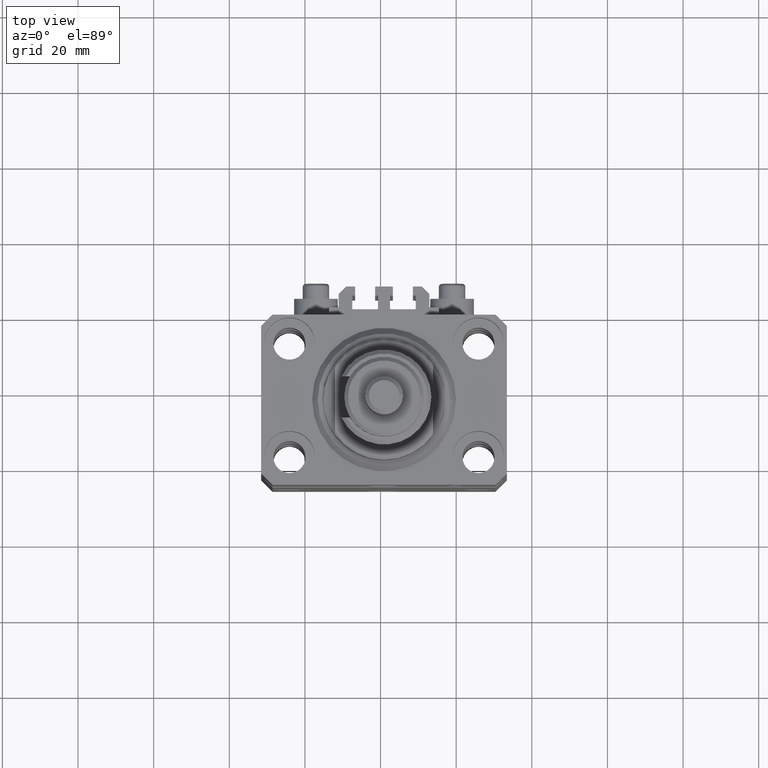
[diagram: clean part render]
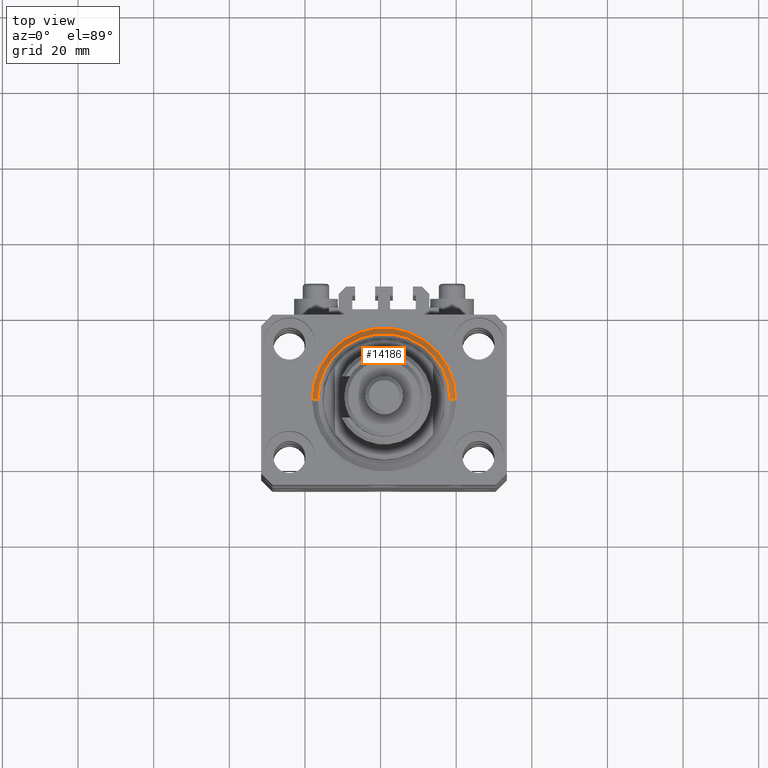
[diagram: same view with one face highlighted and labeled with its STEP entity id]
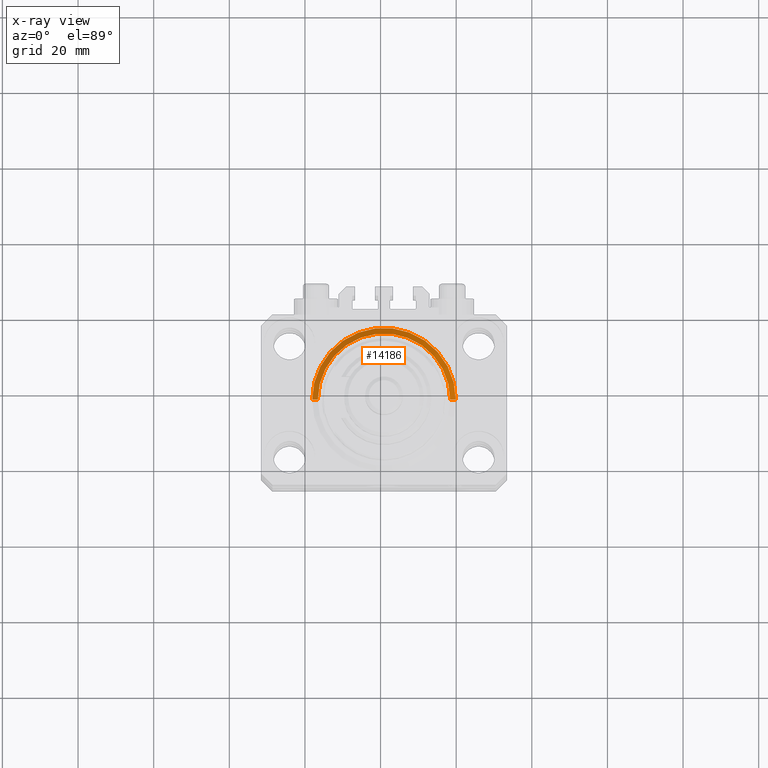
[diagram: x-ray of the same camera — body ghosted, the highlighted face saturated]
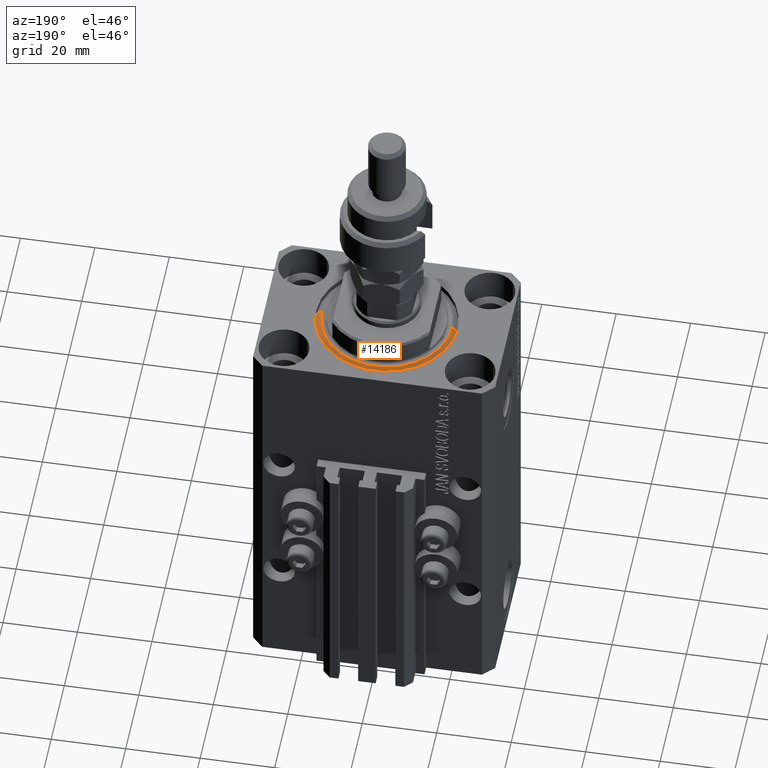
[diagram: same view with one face highlighted and labeled with its STEP entity id]
A machine part, top view. The second image highlights one B-rep face of the part: STEP entity #14186.
The next image is the same camera in x-ray: the body ghosted, the highlighted face saturated — about 0% of this face is hidden behind the body in this view.
A second angle (auxiliary view) of the same face is appended — the face is thin or edge-on in the first view.
In plain terms, the highlighted conical surface has half-angle 45 deg.
Its self-contained STEP definition (entity closure, byte-faithful):
#1216 = ORIENTED_EDGE ( 'NONE', *, *, #22470, .F. ) ;
#1699 = CIRCLE ( 'NONE', #33824, 17.49999999999999289 ) ;
#4367 = LINE ( 'NONE', #12118, #45453 ) ;
#10788 = CARTESIAN_POINT ( 'NONE',  ( 0.000000000000000000, 0.000000000000000000, 1.500000000000004885 ) ) ;
#11076 = CARTESIAN_POINT ( 'NONE',  ( 17.49999999999999289, 0.000000000000000000, 0.000000000000000000 ) ) ;
#12118 = CARTESIAN_POINT ( 'NONE',  ( -19.00000000000000000, 2.326828918379970970E-15, 1.500000000000004885 ) ) ;
#12136 = CARTESIAN_POINT ( 'NONE',  ( -17.49999999999999289, 2.234980408443919215E-15, 0.000000000000000000 ) ) ;
#12313 = VERTEX_POINT ( 'NONE', #12136 ) ;
#12378 = CARTESIAN_POINT ( 'NONE',  ( 19.00000000000000000, 2.326828918379970970E-15, 1.500000000000004885 ) ) ;
#12467 = ORIENTED_EDGE ( 'NONE', *, *, #41294, .T. ) ;
#14186 = ADVANCED_FACE ( 'NONE', ( #34836 ), #36082, .T. ) ;
#14420 = VERTEX_POINT ( 'NONE', #12378 ) ;
#15619 = EDGE_CURVE ( 'NONE', #14420, #48850, #41938, .T. ) ;
#18806 = DIRECTION ( 'NONE',  ( -0.000000000000000000, -0.000000000000000000, 1.000000000000000000 ) ) ;
#19043 = VECTOR ( 'NONE', #24898, 1000.000000000000000 ) ;
#19225 = ORIENTED_EDGE ( 'NONE', *, *, #15619, .F. ) ;
#19894 = EDGE_CURVE ( 'NONE', #12313, #45000, #1699, .T. ) ;
#20379 = DIRECTION ( 'NONE',  ( -0.7071067811865483499, 8.659560562354943952E-17, 0.7071067811865467956 ) ) ;
#21169 = DIRECTION ( 'NONE',  ( -0.000000000000000000, -0.000000000000000000, -1.000000000000000000 ) ) ;
#22470 = EDGE_CURVE ( 'NONE', #45000, #14420, #44760, .T. ) ;
#22916 = ORIENTED_EDGE ( 'NONE', *, *, #19894, .F. ) ;
#23756 = CARTESIAN_POINT ( 'NONE',  ( 0.000000000000000000, 0.000000000000000000, 1.500000000000004885 ) ) ;
#24898 = DIRECTION ( 'NONE',  ( 0.7071067811865483499, 0.000000000000000000, 0.7071067811865467956 ) ) ;
#33824 = AXIS2_PLACEMENT_3D ( 'NONE', #40775, #21169, #36894 ) ;
#34527 = AXIS2_PLACEMENT_3D ( 'NONE', #10788, #18806, #42529 ) ;
#34836 = FACE_OUTER_BOUND ( 'NONE', #45400, .T. ) ;
#36082 = CONICAL_SURFACE ( 'NONE', #50945, 19.00000000000000000, 0.7853981633974492782 ) ;
#36894 = DIRECTION ( 'NONE',  ( 1.000000000000000000, 0.000000000000000000, 0.000000000000000000 ) ) ;
#38463 = DIRECTION ( 'NONE',  ( -0.000000000000000000, -0.000000000000000000, 1.000000000000000000 ) ) ;
#38688 = CARTESIAN_POINT ( 'NONE',  ( -19.00000000000000000, 0.000000000000000000, 1.500000000000004885 ) ) ;
#40775 = CARTESIAN_POINT ( 'NONE',  ( 0.000000000000000000, 0.000000000000000000, 0.000000000000000000 ) ) ;
#41294 = EDGE_CURVE ( 'NONE', #12313, #48850, #4367, .T. ) ;
#41938 = CIRCLE ( 'NONE', #34527, 19.00000000000000000 ) ;
#42529 = DIRECTION ( 'NONE',  ( 1.000000000000000000, 0.000000000000000000, 0.000000000000000000 ) ) ;
#44760 = LINE ( 'NONE', #45521, #19043 ) ;
#45000 = VERTEX_POINT ( 'NONE', #11076 ) ;
#45400 = EDGE_LOOP ( 'NONE', ( #22916, #12467, #19225, #1216 ) ) ;
#45453 = VECTOR ( 'NONE', #20379, 1000.000000000000000 ) ;
#45521 = CARTESIAN_POINT ( 'NONE',  ( 19.00000000000000000, 0.000000000000000000, 1.500000000000004885 ) ) ;
#46463 = DIRECTION ( 'NONE',  ( 1.000000000000000000, 0.000000000000000000, 0.000000000000000000 ) ) ;
#48850 = VERTEX_POINT ( 'NONE', #38688 ) ;
#50945 = AXIS2_PLACEMENT_3D ( 'NONE', #23756, #38463, #46463 ) ;